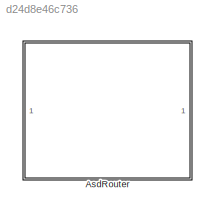
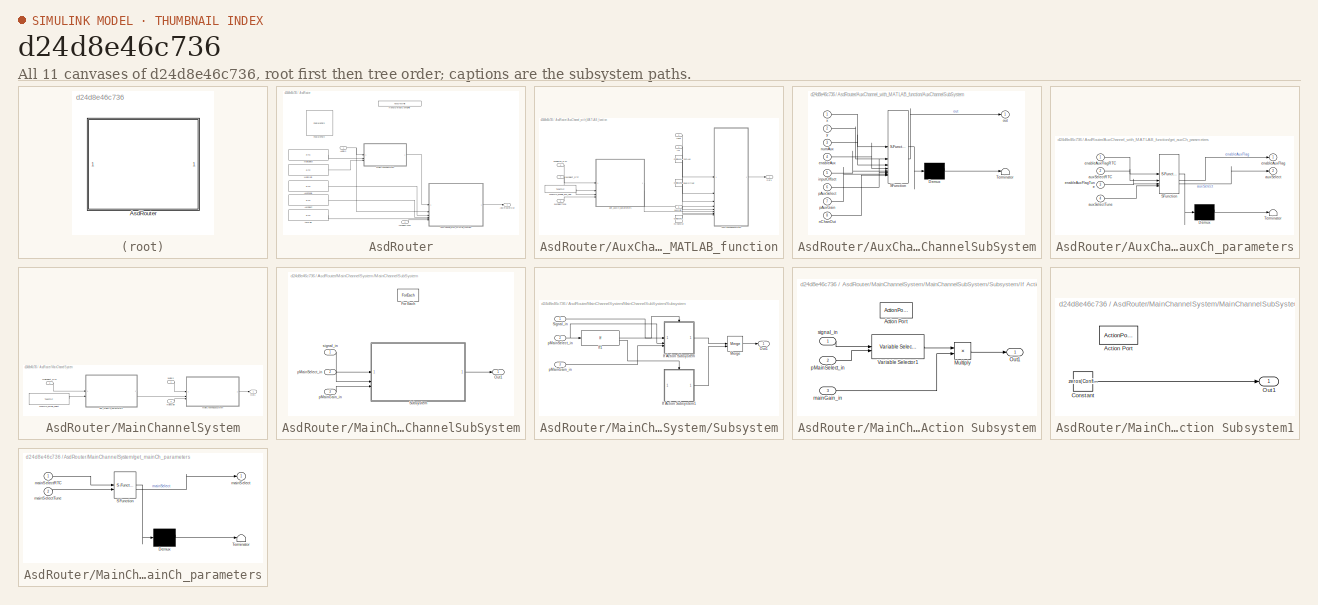
[diagram: thumbnail index - all 11 canvases of the model, root first then tree order]
MODEL slx_d24d8e46c736
KIND library
CONFIG AbsTol = auto
CONFIG EnableMultiTasking = off
CONFIG FixedStep = auto
CONFIG MaxStep = auto
CONFIG MinStep = auto
CONFIG RelTol = 1e-3
CONFIG SampleTimeConstraint = Unconstrained
CONFIG SolverName = VariableStepAuto
CONFIG StartTime = 0.0
CONFIG StopTime = 10.0
BLOCK [SubSystem] AsdRouter
BLOCK [Outport] AsdRouter/ASDRouterOut
  VectorParamsAs1DForOutWhenUnconnected = off
BLOCK [Inport] AsdRouter/AudioIn
BLOCK [SubSystem] AsdRouter/AuxChannel_with_MATLAB_function
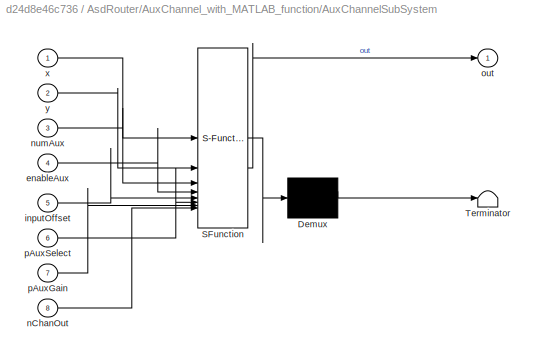
BLOCK [SubSystem] AsdRouter/AuxChannel_with_MATLAB_function/AuxChannelSubSystem
  ErrorFcn = Stateflow.Translate.translate
  PermitHierarchicalResolution = ExplicitOnly
  SFBlockType = MATLAB Function
  TreatAsAtomicUnit = on
BLOCK [Demux] AsdRouter/AuxChannel_with_MATLAB_function/AuxChannelSubSystem/ Demux 
  Outputs = 1
BLOCK [S-Function] AsdRouter/AuxChannel_with_MATLAB_function/AuxChannelSubSystem/ SFunction 
  EnableBusSupport = off
  FunctionName = sf_sfun
  PortCounts = [8 2]
  SFcnIsStateOwnerBlock = off
  SFunctionDeploymentMode = off
  Tag = Stateflow S-Function 2
BLOCK [Terminator] AsdRouter/AuxChannel_with_MATLAB_function/AuxChannelSubSystem/ Terminator 
BLOCK [Inport] AsdRouter/AuxChannel_with_MATLAB_function/AuxChannelSubSystem/enableAux
  Port = 4
BLOCK [Inport] AsdRouter/AuxChannel_with_MATLAB_function/AuxChannelSubSystem/inputOffset
  Port = 5
BLOCK [Inport] AsdRouter/AuxChannel_with_MATLAB_function/AuxChannelSubSystem/nChanOut
  Port = 8
BLOCK [Inport] AsdRouter/AuxChannel_with_MATLAB_function/AuxChannelSubSystem/numAux
  Port = 3
BLOCK [Outport] AsdRouter/AuxChannel_with_MATLAB_function/AuxChannelSubSystem/out
  VectorParamsAs1DForOutWhenUnconnected = off
BLOCK [Inport] AsdRouter/AuxChannel_with_MATLAB_function/AuxChannelSubSystem/pAuxGain
  Port = 7
BLOCK [Inport] AsdRouter/AuxChannel_with_MATLAB_function/AuxChannelSubSystem/pAuxSelect
  Port = 6
BLOCK [Inport] AsdRouter/AuxChannel_with_MATLAB_function/AuxChannelSubSystem/x
BLOCK [Inport] AsdRouter/AuxChannel_with_MATLAB_function/AuxChannelSubSystem/y
  Port = 2
BLOCK [Inport] AsdRouter/AuxChannel_with_MATLAB_function/In1
  PortDimensions = [Config.FrameSize Config.NumChanOut]
  VarSizeSig = No
BLOCK [Inport] AsdRouter/AuxChannel_with_MATLAB_function/Input
  Port = 2
BLOCK [Outport] AsdRouter/AuxChannel_with_MATLAB_function/Out1
  PortDimensions = [Config.FrameSize Config.NumChanOut]
  VarSizeSig = No
  VectorParamsAs1DForOutWhenUnconnected = off
BLOCK [Reference] AsdRouter/AuxChannel_with_MATLAB_function/TuneTOP_enable_aux_flag  REF=TuneVar/TuneTOP
  SourceBlock = TuneVar/TuneTOP
  SourceProductName = Bose Talaria
  SourceType = Talaria Trivial Tune TOP
BLOCK [Inport] AsdRouter/AuxChannel_with_MATLAB_function/auxGain
  Port = 5
BLOCK [Inport] AsdRouter/AuxChannel_with_MATLAB_function/auxSelectTune
  Port = 6
BLOCK [Inport] AsdRouter/AuxChannel_with_MATLAB_function/auxSelect_RTC
  Port = 4
BLOCK [Inport] AsdRouter/AuxChannel_with_MATLAB_function/enableAux_RTC
  Port = 3
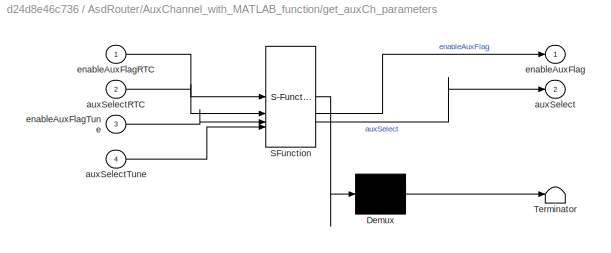
BLOCK [SubSystem] AsdRouter/AuxChannel_with_MATLAB_function/get_auxCh_parameters
  ErrorFcn = Stateflow.Translate.translate
  PermitHierarchicalResolution = ExplicitOnly
  SFBlockType = MATLAB Function
  TreatAsAtomicUnit = on
BLOCK [Demux] AsdRouter/AuxChannel_with_MATLAB_function/get_auxCh_parameters/ Demux 
  Outputs = 1
BLOCK [S-Function] AsdRouter/AuxChannel_with_MATLAB_function/get_auxCh_parameters/ SFunction 
  EnableBusSupport = off
  FunctionName = sf_sfun
  PortCounts = [4 3]
  SFcnIsStateOwnerBlock = off
  SFunctionDeploymentMode = off
  Tag = Stateflow S-Function 4
BLOCK [Terminator] AsdRouter/AuxChannel_with_MATLAB_function/get_auxCh_parameters/ Terminator 
BLOCK [Outport] AsdRouter/AuxChannel_with_MATLAB_function/get_auxCh_parameters/auxSelect
  Port = 2
  VectorParamsAs1DForOutWhenUnconnected = off
BLOCK [Inport] AsdRouter/AuxChannel_with_MATLAB_function/get_auxCh_parameters/auxSelectRTC
  Port = 2
BLOCK [Inport] AsdRouter/AuxChannel_with_MATLAB_function/get_auxCh_parameters/auxSelectTune
  Port = 4
BLOCK [Outport] AsdRouter/AuxChannel_with_MATLAB_function/get_auxCh_parameters/enableAuxFlag
  VectorParamsAs1DForOutWhenUnconnected = off
BLOCK [Inport] AsdRouter/AuxChannel_with_MATLAB_function/get_auxCh_parameters/enableAuxFlagRTC
BLOCK [Inport] AsdRouter/AuxChannel_with_MATLAB_function/get_auxCh_parameters/enableAuxFlagTune
  Port = 3
BLOCK [Constant] AsdRouter/AuxChannel_with_MATLAB_function/inputOffset
  OutDataTypeStr = int32
  Value = Config.NumMainCh
BLOCK [Constant] AsdRouter/AuxChannel_with_MATLAB_function/nChanOut
  OutDataTypeStr = int32
  Value = Config.NumChanOut
BLOCK [Constant] AsdRouter/AuxChannel_with_MATLAB_function/numAux
  OutDataTypeStr = int32
  Value = Config.NumAux
BLOCK [Reference] AsdRouter/AuxEnable  REF=RTC/RTC
  SourceBlock = RTC/RTC
  SourceProductName = Bose Talaria
  SourceType = Talaria RTC Receive
BLOCK [Reference] AsdRouter/AuxGain  REF=RTC/RTC
  SourceBlock = RTC/RTC
  SourceProductName = Bose Talaria
  SourceType = Talaria RTC Receive
BLOCK [Reference] AsdRouter/AuxSelect  REF=RTC/RTC
  SourceBlock = RTC/RTC
  SourceProductName = Bose Talaria
  SourceType = Talaria RTC Receive
BLOCK [Inport] AsdRouter/AuxSelectTune
  Port = 2
BLOCK [Reference] AsdRouter/FeaturePath  REF=FeaturePath/FeaturePath
  SourceBlock = FeaturePath/FeaturePath
  SourceProductName = Bose Talaria
  SourceType = Talaria Feature Path
BLOCK [Reference] AsdRouter/HandyDefaultConfigFile  REF=HandyTextFile/HandyTextFile
  SourceBlock = HandyTextFile/HandyTextFile
  SourceProductName = Bose Talaria
  SourceType = Talaria Handy Text File
BLOCK [SubSystem] AsdRouter/MainChannelSystem
BLOCK [SubSystem] AsdRouter/MainChannelSystem/MainChannelSubSystem
  TreatAsAtomicUnit = on
BLOCK [ForEach] AsdRouter/MainChannelSystem/MainChannelSubSystem/For Each
  DisableCoverage = on
BLOCK [Outport] AsdRouter/MainChannelSystem/MainChannelSubSystem/Out1
  ConcatenationDimension = 2
  VectorParamsAs1DForOutWhenUnconnected = off
BLOCK [SubSystem] AsdRouter/MainChannelSystem/MainChannelSubSystem/Subsystem
BLOCK [SubSystem] AsdRouter/MainChannelSystem/MainChannelSubSystem/Subsystem/If Action Subsystem
  TreatAsAtomicUnit = on
BLOCK [ActionPort] AsdRouter/MainChannelSystem/MainChannelSubSystem/Subsystem/If Action Subsystem/Action Port
BLOCK [Product] AsdRouter/MainChannelSystem/MainChannelSubSystem/Subsystem/If Action Subsystem/Multiply
BLOCK [Outport] AsdRouter/MainChannelSystem/MainChannelSubSystem/Subsystem/If Action Subsystem/Out1
  VectorParamsAs1DForOutWhenUnconnected = off
BLOCK [Reference] AsdRouter/MainChannelSystem/MainChannelSubSystem/Subsystem/If Action Subsystem/Variable Selector1  REF=dspindex/Variable
Selector
  SourceBlock = dspindex/Variable\nSelector
  SourceType = Variable Selector
BLOCK [Inport] AsdRouter/MainChannelSystem/MainChannelSubSystem/Subsystem/If Action Subsystem/mainGain_in
  Port = 3
BLOCK [Inport] AsdRouter/MainChannelSystem/MainChannelSubSystem/Subsystem/If Action Subsystem/pMainSelect_in
  Port = 2
BLOCK [Inport] AsdRouter/MainChannelSystem/MainChannelSubSystem/Subsystem/If Action Subsystem/signal_in
BLOCK [SubSystem] AsdRouter/MainChannelSystem/MainChannelSubSystem/Subsystem/If Action Subsystem1
  TreatAsAtomicUnit = on
BLOCK [ActionPort] AsdRouter/MainChannelSystem/MainChannelSubSystem/Subsystem/If Action Subsystem1/Action Port
BLOCK [Constant] AsdRouter/MainChannelSystem/MainChannelSubSystem/Subsystem/If Action Subsystem1/Constant
  OutDataTypeStr = single
  Value = zeros(Config.FrameSize,1)
BLOCK [Outport] AsdRouter/MainChannelSystem/MainChannelSubSystem/Subsystem/If Action Subsystem1/Out1
  VectorParamsAs1DForOutWhenUnconnected = off
BLOCK [If] AsdRouter/MainChannelSystem/MainChannelSubSystem/Subsystem/If1
  IfExpression = u1 >0
BLOCK [Merge] AsdRouter/MainChannelSystem/MainChannelSubSystem/Subsystem/Merge
BLOCK [Outport] AsdRouter/MainChannelSystem/MainChannelSubSystem/Subsystem/Out1
  VectorParamsAs1DForOutWhenUnconnected = off
BLOCK [Inport] AsdRouter/MainChannelSystem/MainChannelSubSystem/Subsystem/Signal_in
BLOCK [Inport] AsdRouter/MainChannelSystem/MainChannelSubSystem/Subsystem/pMainGain_in
  Port = 3
BLOCK [Inport] AsdRouter/MainChannelSystem/MainChannelSubSystem/Subsystem/pMainSelect_in
  Port = 2
BLOCK [Inport] AsdRouter/MainChannelSystem/MainChannelSubSystem/pMainGain_in
  Partition = on
  PartitionDimension = 1
  PartitionOffset = 0
  PartitionWidth = 1
  Port = 3
BLOCK [Inport] AsdRouter/MainChannelSystem/MainChannelSubSystem/pMainSelect_in
  Partition = on
  PartitionDimension = 1
  PartitionOffset = 0
  PartitionWidth = 1
  Port = 2
BLOCK [Inport] AsdRouter/MainChannelSystem/MainChannelSubSystem/signal_in
BLOCK [Outport] AsdRouter/MainChannelSystem/Out1
  PortDimensions = [Config.FrameSize Config.NumChanOut]
  VarSizeSig = No
  VectorParamsAs1DForOutWhenUnconnected = off
BLOCK [Reference] AsdRouter/MainChannelSystem/TuneTOP_pmain_select  REF=TuneVar/TuneTOP
  SourceBlock = TuneVar/TuneTOP
  SourceProductName = Bose Talaria
  SourceType = Talaria Trivial Tune TOP
BLOCK [Inport] AsdRouter/MainChannelSystem/audioIn
BLOCK [SubSystem] AsdRouter/MainChannelSystem/get_mainCh_parameters
  ErrorFcn = Stateflow.Translate.translate
  PermitHierarchicalResolution = ExplicitOnly
  SFBlockType = MATLAB Function
  TreatAsAtomicUnit = on
BLOCK [Demux] AsdRouter/MainChannelSystem/get_mainCh_parameters/ Demux 
  Outputs = 1
BLOCK [S-Function] AsdRouter/MainChannelSystem/get_mainCh_parameters/ SFunction 
  EnableBusSupport = off
  FunctionName = sf_sfun
  PortCounts = [2 2]
  SFcnIsStateOwnerBlock = off
  SFunctionDeploymentMode = off
  Tag = Stateflow S-Function 1
BLOCK [Terminator] AsdRouter/MainChannelSystem/get_mainCh_parameters/ Terminator 
BLOCK [Outport] AsdRouter/MainChannelSystem/get_mainCh_parameters/mainSelect
  VectorParamsAs1DForOutWhenUnconnected = off
BLOCK [Inport] AsdRouter/MainChannelSystem/get_mainCh_parameters/mainSelectRTC
BLOCK [Inport] AsdRouter/MainChannelSystem/get_mainCh_parameters/mainSelectTune
  Port = 2
BLOCK [Inport] AsdRouter/MainChannelSystem/mainGain
  Port = 3
BLOCK [Inport] AsdRouter/MainChannelSystem/mainSelect_RTC
  Port = 2
BLOCK [Reference] AsdRouter/MainGain  REF=RTC/RTC
  SourceBlock = RTC/RTC
  SourceProductName = Bose Talaria
  SourceType = Talaria RTC Receive
BLOCK [Reference] AsdRouter/MainSelect  REF=RTC/RTC
  SourceBlock = RTC/RTC
  SourceProductName = Bose Talaria
  SourceType = Talaria RTC Receive
CHART AsdRouter/MainChannelSystem/get_mainCh_parameters states=1 transitions=1
  STATE_LABEL 'eML_blk_kernel()'
  STATE_LABEL 'SCRIPT:\nfunction mainSelect  = get_mainChannel_parameters(mainSelectRTC,... % RTC message parameter\n                        mainSelectTune) % Tune parameter\n\n% Main Select is provided to the block through Tune variables. However \n% if parameters are provided through RTC, the block will use the values \n% given in the RTC messages.    \nmainSelect = int32(mainSelectTune);\nfor ind=1:size(mainSelectRTC...<+206ch>'
CHART AsdRouter/AuxChannel_with_MATLAB_function/AuxChannelSubSystem states=1 transitions=1
  STATE_LABEL 'eML_blk_kernel()'
  STATE_LABEL 'SCRIPT:\nfunction out = fcn(x, y, numAux, enableAux, inputOffset, pAuxSelect, pAuxGain, nChanOut)\n% initial inputOffset is the number of ENT inputs\n\nfor i=1:length(numAux)\n    if(enableAux(i))\n        tempSelect = inputOffset + pAuxSelect((i-1)*nChanOut+1:i*nChanOut);   % Account for Matlab 1 index\n        tempGain = pAuxGain((i-1)*nChanOut+1:i*nChanOut);   % Account for Matlab 1 index\n        for ...<+534ch>'
CHART AsdRouter/AuxChannel_with_MATLAB_function/get_auxCh_parameters states=1 transitions=1
  STATE_LABEL 'eML_blk_kernel()'
  STATE_LABEL 'SCRIPT:\nfunction [enableAuxFlag, auxSelect] = get_auxChannel_parameters(...\n    enableAuxFlagRTC, auxSelectRTC,... % RTC message parameters\n    enableAuxFlagTune, auxSelectTune) % Tune parameters\n\n% Aux Select and Enable Aux are provided to the block through Tune variables. However \n% if parameters are provided through RTC, the block will use the values \n% given in the RTC messages.    \nenableAuxF...<+464ch>'
CHART  states=0 transitions=0
CHART  states=0 transitions=0
CHART  states=0 transitions=0
